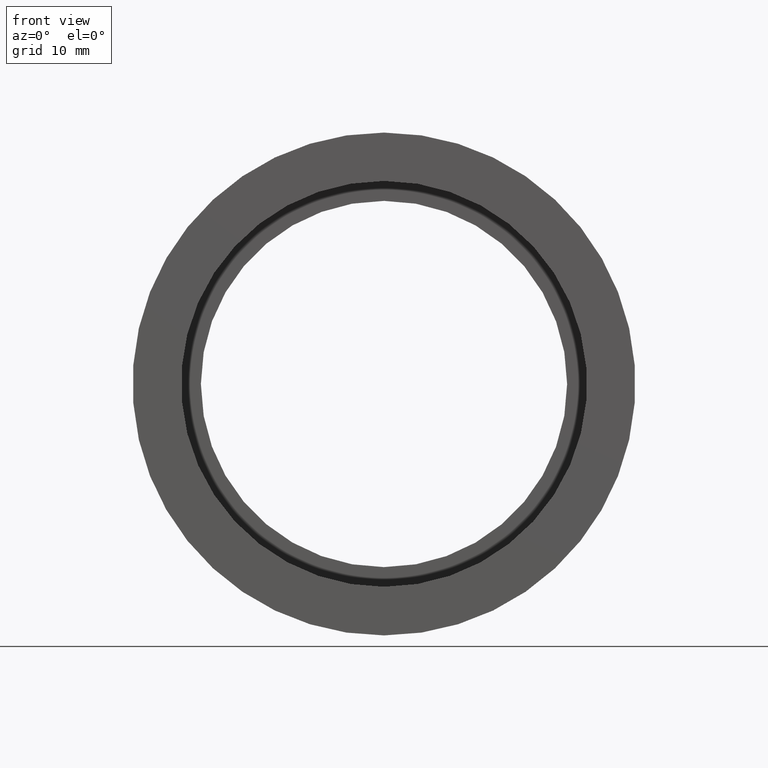
[diagram: clean part render]
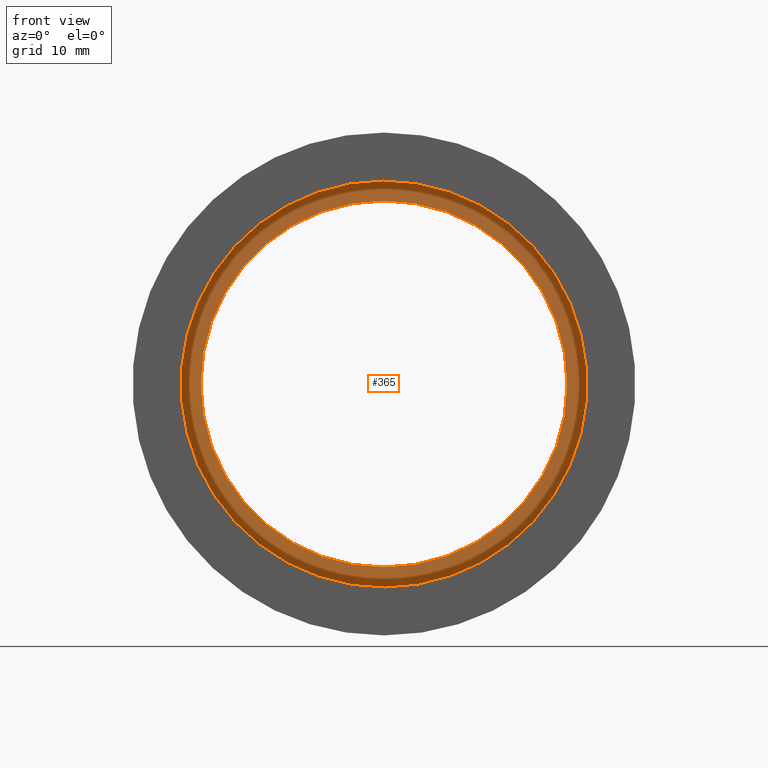
[diagram: same view with one face highlighted and labeled with its STEP entity id]
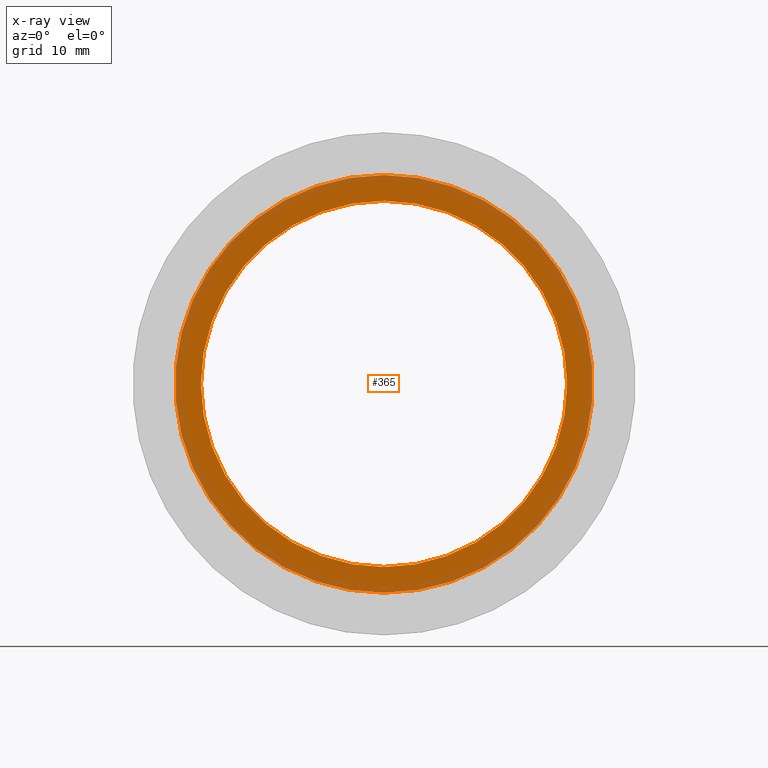
[diagram: x-ray of the same camera — body ghosted, the highlighted face saturated]
A machine part, front view. The second image highlights one B-rep face of the part: STEP entity #365.
The next image is the same camera in x-ray: the body ghosted, the highlighted face saturated — about 24% of this face is hidden behind the body in this view.
In plain terms, the highlighted planar face has unit normal (-0, 1, 0).
Its self-contained STEP definition (entity closure, byte-faithful):
#11 = VERTEX_POINT ( 'NONE', #255 ) ;
#86 = DIRECTION ( 'NONE',  ( 0.0000000000000000000, 0.0000000000000000000, 1.000000000000000000 ) ) ;
#95 = PLANE ( 'NONE',  #197 ) ;
#96 = AXIS2_PLACEMENT_3D ( 'NONE', #428, #521, #525 ) ;
#101 = CARTESIAN_POINT ( 'NONE',  ( 0.0000000000000000000, 10.69999999999998700, 0.0000000000000000000 ) ) ;
#104 = VERTEX_POINT ( 'NONE', #558 ) ;
#109 = FACE_BOUND ( 'NONE', #446, .T. ) ;
#146 = CARTESIAN_POINT ( 'NONE',  ( 21.10000000000001900, 10.69999999999998700, 0.0000000000000000000 ) ) ;
#151 = CARTESIAN_POINT ( 'NONE',  ( 0.0000000000000000000, 10.69999999999998700, 21.10000000000001900 ) ) ;
#154 = CIRCLE ( 'NONE', #406, 18.50000000000001800 ) ;
#185 = CARTESIAN_POINT ( 'NONE',  ( 0.0000000000000000000, 10.69999999999998700, 0.0000000000000000000 ) ) ;
#190 = DIRECTION ( 'NONE',  ( 0.0000000000000000000, 0.0000000000000000000, 1.000000000000000000 ) ) ;
#193 = DIRECTION ( 'NONE',  ( 0.0000000000000000000, 0.0000000000000000000, 1.000000000000000000 ) ) ;
#196 = VERTEX_POINT ( 'NONE', #511 ) ;
#197 = AXIS2_PLACEMENT_3D ( 'NONE', #146, #437, #193 ) ;
#202 = CIRCLE ( 'NONE', #552, 21.10000000000001900 ) ;
#246 = ORIENTED_EDGE ( 'NONE', *, *, #612, .T. ) ;
#248 = EDGE_CURVE ( 'NONE', #196, #104, #347, .T. ) ;
#255 = CARTESIAN_POINT ( 'NONE',  ( 2.584004746200917400E-015, 10.69999999999998700, -21.10000000000001900 ) ) ;
#276 = EDGE_CURVE ( 'NONE', #11, #295, #576, .T. ) ;
#295 = VERTEX_POINT ( 'NONE', #151 ) ;
#296 = EDGE_LOOP ( 'NONE', ( #622, #383 ) ) ;
#309 = FACE_OUTER_BOUND ( 'NONE', #296, .T. ) ;
#347 = CIRCLE ( 'NONE', #96, 18.50000000000001800 ) ;
#365 = ADVANCED_FACE ( 'NONE', ( #309, #109 ), #95, .F. ) ;
#383 = ORIENTED_EDGE ( 'NONE', *, *, #276, .F. ) ;
#406 = AXIS2_PLACEMENT_3D ( 'NONE', #185, #485, #432 ) ;
#420 = EDGE_CURVE ( 'NONE', #295, #11, #202, .T. ) ;
#428 = CARTESIAN_POINT ( 'NONE',  ( 0.0000000000000000000, 10.69999999999998700, 0.0000000000000000000 ) ) ;
#432 = DIRECTION ( 'NONE',  ( 0.0000000000000000000, 0.0000000000000000000, 1.000000000000000000 ) ) ;
#437 = DIRECTION ( 'NONE',  ( -0.0000000000000000000, 1.000000000000000000, 0.0000000000000000000 ) ) ;
#446 = EDGE_LOOP ( 'NONE', ( #536, #246 ) ) ;
#485 = DIRECTION ( 'NONE',  ( -0.0000000000000000000, 1.000000000000000000, -0.0000000000000000000 ) ) ;
#511 = CARTESIAN_POINT ( 'NONE',  ( 0.0000000000000000000, 10.69999999999998700, 18.50000000000001800 ) ) ;
#521 = DIRECTION ( 'NONE',  ( -0.0000000000000000000, 1.000000000000000000, -0.0000000000000000000 ) ) ;
#525 = DIRECTION ( 'NONE',  ( 0.0000000000000000000, 0.0000000000000000000, 1.000000000000000000 ) ) ;
#536 = ORIENTED_EDGE ( 'NONE', *, *, #248, .T. ) ;
#538 = AXIS2_PLACEMENT_3D ( 'NONE', #101, #582, #190 ) ;
#552 = AXIS2_PLACEMENT_3D ( 'NONE', #620, #568, #86 ) ;
#558 = CARTESIAN_POINT ( 'NONE',  ( 2.265596578422605400E-015, 10.69999999999998700, -18.50000000000001800 ) ) ;
#568 = DIRECTION ( 'NONE',  ( -0.0000000000000000000, 1.000000000000000000, -0.0000000000000000000 ) ) ;
#576 = CIRCLE ( 'NONE', #538, 21.10000000000001900 ) ;
#582 = DIRECTION ( 'NONE',  ( -0.0000000000000000000, 1.000000000000000000, -0.0000000000000000000 ) ) ;
#612 = EDGE_CURVE ( 'NONE', #104, #196, #154, .T. ) ;
#620 = CARTESIAN_POINT ( 'NONE',  ( 0.0000000000000000000, 10.69999999999998700, 0.0000000000000000000 ) ) ;
#622 = ORIENTED_EDGE ( 'NONE', *, *, #420, .F. ) ;